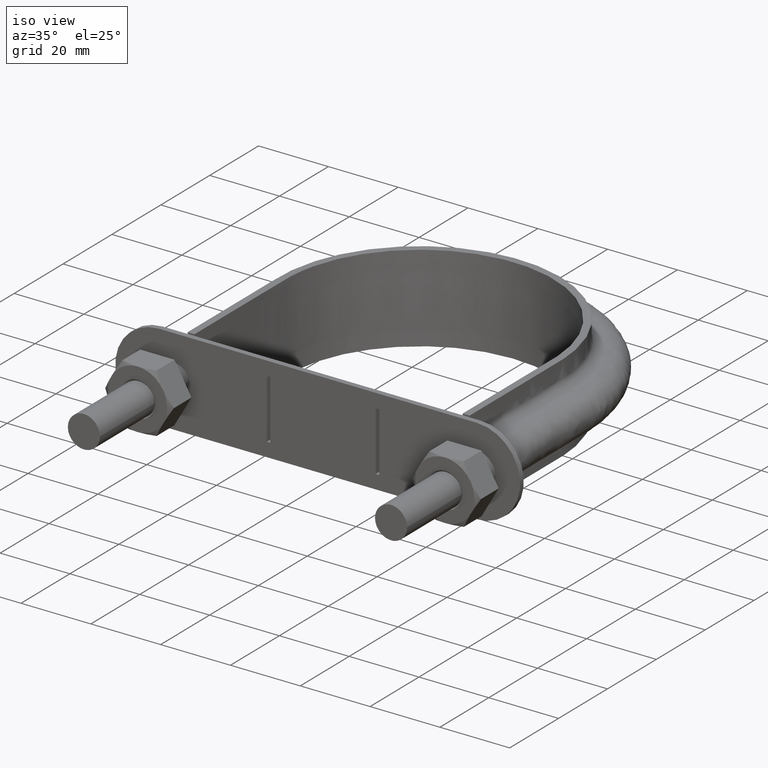
[diagram: clean part render]
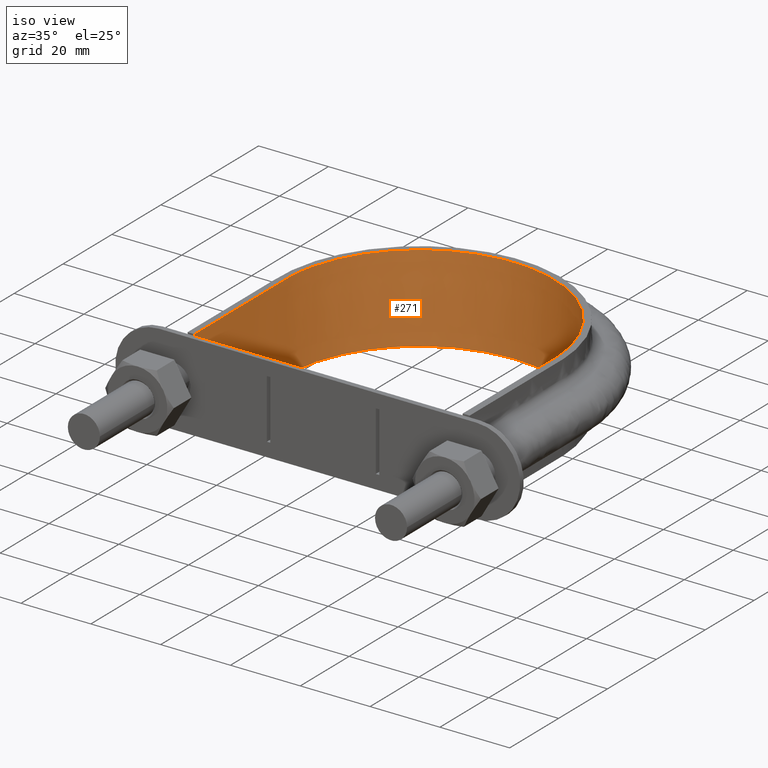
[diagram: same view with one face highlighted and labeled with its STEP entity id]
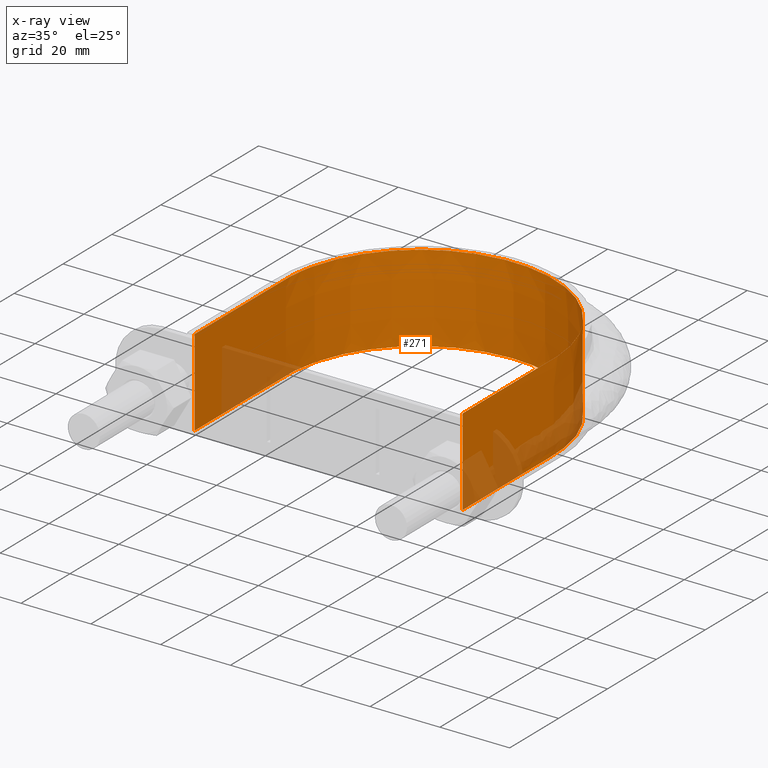
[diagram: x-ray of the same camera — body ghosted, the highlighted face saturated]
A machine part, iso view. The second image highlights one B-rep face of the part: STEP entity #271.
The next image is the same camera in x-ray: the body ghosted, the highlighted face saturated — about 15% of this face is hidden behind the body in this view.
In plain terms, the highlighted face is a SurfaceOfExtrusion surface.
Its self-contained STEP definition (entity closure, byte-faithful):
#271 = ADVANCED_FACE( '', ( #389 ), #390, .T. );
#389 = FACE_OUTER_BOUND( '', #1168, .T. );
#390 = SURFACE_OF_LINEAR_EXTRUSION( '', #1169, #1170 );
#1168 = EDGE_LOOP( '', ( #1737, #1738, #1739, #1740 ) );
#1169 = B_SPLINE_CURVE_WITH_KNOTS( '', 3, ( #1741, #1742, #1743, #1744, #1745, #1746, #1747, #1748, #1749, #1750, #1751, #1752, #1753, #1754, #1755, #1756, #1757 ), .UNSPECIFIED., .F., .F., ( 4, 3, 1, 1, 1, 1, 1, 1, 1, 3, 4 ), ( -7.93017456359102, -7.00000000000000, -6.50000000000000, -6.00000000000000, -5.00000000000000, -4.00000000000000, -3.00000000000000, -2.00000000000000, -1.50000000000000, -1.00000000000000, -0.0698254364089773 ), .UNSPECIFIED. );
#1170 = VECTOR( '', #1758, 1000.00000000000 );
#1737 = ORIENTED_EDGE( '', *, *, #2517, .T. );
#1738 = ORIENTED_EDGE( '', *, *, #2530, .T. );
#1739 = ORIENTED_EDGE( '', *, *, #2525, .F. );
#1740 = ORIENTED_EDGE( '', *, *, #2522, .T. );
#1741 = CARTESIAN_POINT( '', ( 38.4000000000000, 37.3000000000000, 12.5000100000909 ) );
#1742 = CARTESIAN_POINT( '', ( 38.4000000000000, 49.7333333333333, 12.5000100000909 ) );
#1743 = CARTESIAN_POINT( '', ( 38.4000000000000, 62.1666666666667, 12.5000100000909 ) );
#1744 = CARTESIAN_POINT( '', ( 38.4000000000000, 74.6000000000000, 12.5000100000909 ) );
#1745 = CARTESIAN_POINT( '', ( 38.4000000000000, 77.9378960382428, 12.5000100000909 ) );
#1746 = CARTESIAN_POINT( '', ( 37.5004323173849, 84.6534987012364, 12.5000100000909 ) );
#1747 = CARTESIAN_POINT( '', ( 32.3590360537293, 97.1468427507952, 12.5000100000909 ) );
#1748 = CARTESIAN_POINT( '', ( 20.0971465093487, 109.410921736661, 12.5000100000909 ) );
#1749 = CARTESIAN_POINT( '', ( 2.79356000082899E-014, 114.794539131670, 12.5000100000909 ) );
#1750 = CARTESIAN_POINT( '', ( -20.0971465093486, 109.410921736661, 12.5000100000909 ) );
#1751 = CARTESIAN_POINT( '', ( -32.3590360537293, 97.1468427507952, 12.5000100000909 ) );
#1752 = CARTESIAN_POINT( '', ( -37.5004323173848, 84.6534987012364, 12.5000100000909 ) );
#1753 = CARTESIAN_POINT( '', ( -38.4000000000000, 77.9378960382428, 12.5000100000909 ) );
#1754 = CARTESIAN_POINT( '', ( -38.4000000000000, 74.6000000000000, 12.5000100000909 ) );
#1755 = CARTESIAN_POINT( '', ( -38.4000000000000, 62.1666666666667, 12.5000100000909 ) );
#1756 = CARTESIAN_POINT( '', ( -38.4000000000000, 49.7333333333333, 12.5000100000909 ) );
#1757 = CARTESIAN_POINT( '', ( -38.4000000000000, 37.3000000000000, 12.5000100000909 ) );
#1758 = DIRECTION( '', ( 0.000000000000000, 0.000000000000000, -1.00000000000000 ) );
#2517 = EDGE_CURVE( '', #2751, #2752, #2753, .T. );
#2522 = EDGE_CURVE( '', #2761, #2751, #2762, .T. );
#2525 = EDGE_CURVE( '', #2761, #2766, #2767, .T. );
#2530 = EDGE_CURVE( '', #2752, #2766, #2774, .F. );
#2751 = VERTEX_POINT( '', #3139 );
#2752 = VERTEX_POINT( '', #3140 );
#2753 = LINE( '', #3141, #3142 );
#2761 = VERTEX_POINT( '', #3191 );
#2762 = B_SPLINE_CURVE_WITH_KNOTS( '', 3, ( #3192, #3193, #3194, #3195, #3196, #3197, #3198, #3199, #3200, #3201, #3202, #3203, #3204, #3205, #3206, #3207, #3208, #3209, #3210, #3211, #3212, #3213, #3214, #3215, #3216, #3217, #3218, #3219, #3220, #3221, #3222, #3223, #3224, #3225, #3226, #3227, #3228, #3229, #3230, #3231, #3232, #3233, #3234, #3235, #3236, #3237, #3238, #3239, #3240, #3241, #3242, #3243, #3244, #3245, #3246, #3247, #3248, #3249, #3250, #3251, #3252, #3253, #3254, #3255, #3256, #3257, #3258, #3259, #3260, #3261, #3262, #3263, #3264, #3265, #3266, #3267, #3268, #3269, #3270, #3271, #3272, #3273, #3274, #3275, #3276, #3277 ), .UNSPECIFIED., .F., .F., ( 4, 1, 2, 2, 2, 2, 2, 2, 2, 2, 2, 2, 2, 2, 2, 2, 2, 2, 2, 2, 2, 2, 2, 2, 2, 2, 2, 2, 2, 2, 2, 2, 2, 2, 2, 2, 2, 2, 2, 2, 2, 2, 1, 4 ), ( 0.000000000000000, 0.0243379018108098, 0.0365068527162147, 0.0380279715793904, 0.0395490904425660, 0.0425913281689173, 0.0456335658952686, 0.0486758036216198, 0.0547602790743224, 0.0578025168006737, 0.0593236356638494, 0.0608447545270250, 0.0669292299797277, 0.0699714677060791, 0.0714925865692548, 0.0730137054324304, 0.0790981808851331, 0.0851826563378357, 0.0867037752010114, 0.0882248940641870, 0.0912671317905383, 0.0973516072432409, 0.0988727261064166, 0.100393844969592, 0.103436082695944, 0.109520558148646, 0.112562795874997, 0.115605033601349, 0.121689509054051, 0.123210627917227, 0.124731746780403, 0.127773984506754, 0.133858459959457, 0.136900697685808, 0.139942935412159, 0.146027410864862, 0.149069648591213, 0.150590767454389, 0.152111886317564, 0.155154124043915, 0.156675242907091, 0.158196361770267, 0.170365312675672, 0.194703214486481 ), .UNSPECIFIED. );
#2766 = VERTEX_POINT( '', #3298 );
#2767 = LINE( '', #3299, #3300 );
#2774 = B_SPLINE_CURVE_WITH_KNOTS( '', 3, ( #3363, #3364, #3365, #3366, #3367, #3368, #3369, #3370, #3371, #3372, #3373, #3374, #3375, #3376, #3377, #3378, #3379 ), .UNSPECIFIED., .F., .F., ( 4, 3, 1, 1, 1, 1, 1, 1, 1, 3, 4 ), ( -7.93017456359102, -7.00000000000000, -6.50000000000000, -6.00000000000000, -5.00000000000000, -4.00000000000000, -3.00000000000000, -2.00000000000000, -1.50000000000000, -1.00000000000000, -0.0698254364089773 ), .UNSPECIFIED. );
#3139 = CARTESIAN_POINT( '', ( -38.4000000000000, 37.3000000000000, 12.5000000000000 ) );
#3140 = CARTESIAN_POINT( '', ( -38.4000000000000, 37.3000000000000, -12.5000000000000 ) );
#3141 = CARTESIAN_POINT( '', ( -38.4000000000000, 37.3000000000000, 12.5000100000909 ) );
#3142 = VECTOR( '', #4012, 1000.00000000000 );
#3191 = CARTESIAN_POINT( '', ( 38.4000000000000, 37.3000000000000, 12.5000000000000 ) );
#3192 = CARTESIAN_POINT( '', ( 38.4000000000000, 37.3000000000000, 12.5000000000000 ) );
#3193 = CARTESIAN_POINT( '', ( 38.4000000000000, 45.4126339369367, 12.5000000000000 ) );
#3194 = CARTESIAN_POINT( '', ( 38.4000000000000, 57.5815848423418, 12.5000000000000 ) );
#3195 = CARTESIAN_POINT( '', ( 38.4000000000000, 69.7505357477468, 12.5000000000000 ) );
#3196 = CARTESIAN_POINT( '', ( 38.4000000000000, 74.3138923372737, 12.5000000000000 ) );
#3197 = CARTESIAN_POINT( '', ( 38.4027743076037, 74.8211194098904, 12.5000000000000 ) );
#3198 = CARTESIAN_POINT( '', ( 38.3830167791574, 75.8338636956792, 12.5000000000000 ) );
#3199 = CARTESIAN_POINT( '', ( 38.3628782069929, 76.3395426144401, 12.5000000000000 ) );
#3200 = CARTESIAN_POINT( '', ( 38.2722040230530, 77.8545348977657, 12.5000000000000 ) );
#3201 = CARTESIAN_POINT( '', ( 38.1714849409613, 78.8618088567026, 12.5000000000000 ) );
#3202 = CARTESIAN_POINT( '', ( 37.8904277266656, 80.8709771566200, 12.5000000000000 ) );
#3203 = CARTESIAN_POINT( '', ( 37.7100929165158, 81.8728717220618, 12.5000000000000 ) );
#3204 = CARTESIAN_POINT( '', ( 37.2682777085645, 83.8711780914732, 12.5000000000000 ) );
#3205 = CARTESIAN_POINT( '', ( 37.0058649207665, 84.8692095980045, 12.5000000000000 ) );
#3206 = CARTESIAN_POINT( '', ( 36.1099085355124, 87.8004283289942, 12.5000000000000 ) );
#3207 = CARTESIAN_POINT( '', ( 35.3652812283339, 89.6892778605103, 12.5000000000000 ) );
#3208 = CARTESIAN_POINT( '', ( 34.0270721353676, 92.4244820465236, 12.5000000000000 ) );
#3209 = CARTESIAN_POINT( '', ( 33.5438803306412, 93.3197635736672, 12.5000000000000 ) );
#3210 = CARTESIAN_POINT( '', ( 32.7614856080269, 94.6371533741601, 12.5000000000000 ) );
#3211 = CARTESIAN_POINT( '', ( 32.4911122498971, 95.0720394393449, 12.5000000000000 ) );
#3212 = CARTESIAN_POINT( '', ( 31.9310694523164, 95.9332591910994, 12.5000000000000 ) );
#3213 = CARTESIAN_POINT( '', ( 31.6416548483075, 96.3590998328813, 12.5000000000000 ) );
#3214 = CARTESIAN_POINT( '', ( 30.1598500561493, 98.4479727097781, 12.5000000000000 ) );
#3215 = CARTESIAN_POINT( '', ( 28.8544690281686, 100.006253780205, 12.5000000000000 ) );
#3216 = CARTESIAN_POINT( '', ( 26.7242269234556, 102.181725572989, 12.5000000000000 ) );
#3217 = CARTESIAN_POINT( '', ( 25.9852601970117, 102.879711605143, 12.5000000000000 ) );
#3218 = CARTESIAN_POINT( '', ( 24.8327554866621, 103.885251295441, 12.5000000000000 ) );
#3219 = CARTESIAN_POINT( '', ( 24.4412331318476, 104.213513644747, 12.5000000000000 ) );
#3220 = CARTESIAN_POINT( '', ( 23.6432116170530, 104.855950622700, 12.5000000000000 ) );
#3221 = CARTESIAN_POINT( '', ( 23.2357844532913, 105.170799679600, 12.5000000000000 ) );
#3222 = CARTESIAN_POINT( '', ( 21.1728995967700, 106.699717522121, 12.5000000000000 ) );
#3223 = CARTESIAN_POINT( '', ( 19.4461214786923, 107.775116348712, 12.5000000000000 ) );
#3224 = CARTESIAN_POINT( '', ( 15.8424012951627, 109.635807157407, 12.5000000000000 ) );
#3225 = CARTESIAN_POINT( '', ( 13.9663663217124, 110.422851581443, 12.5000000000000 ) );
#3226 = CARTESIAN_POINT( '', ( 11.5271708169512, 111.224762065559, 12.5000000000000 ) );
#3227 = CARTESIAN_POINT( '', ( 11.0351210878858, 111.375746188077, 12.5000000000000 ) );
#3228 = CARTESIAN_POINT( '', ( 10.0502423640907, 111.656786422983, 12.5000000000000 ) );
#3229 = CARTESIAN_POINT( '', ( 9.55637016529625, 111.787194835959, 12.5000000000000 ) );
#3230 = CARTESIAN_POINT( '', ( 8.07051418322863, 112.148502213832, 12.5000000000000 ) );
#3231 = CARTESIAN_POINT( '', ( 7.07429985999578, 112.349545743025, 12.5000000000000 ) );
#3232 = CARTESIAN_POINT( '', ( 4.06886690428282, 112.834187354575, 12.5000000000000 ) );
#3233 = CARTESIAN_POINT( '', ( 2.04300780873477, 113.000351662540, 12.5000000000000 ) );
#3234 = CARTESIAN_POINT( '', ( -0.518810472446216, 112.999911391897, 12.5000000000000 ) );
#3235 = CARTESIAN_POINT( '', ( -1.03384934041133, 112.989267949139, 12.5000000000000 ) );
#3236 = CARTESIAN_POINT( '', ( -2.05999227101034, 112.947123645522, 12.5000000000000 ) );
#3237 = CARTESIAN_POINT( '', ( -2.57100025916374, 112.915690794062, 12.5000000000000 ) );
#3238 = CARTESIAN_POINT( '', ( -4.09798525337127, 112.791070625937, 12.5000000000000 ) );
#3239 = CARTESIAN_POINT( '', ( -5.10793619044573, 112.667626472700, 12.5000000000000 ) );
#3240 = CARTESIAN_POINT( '', ( -8.11438462156143, 112.179780837089, 12.5000000000000 ) );
#3241 = CARTESIAN_POINT( '', ( -10.0876738344830, 111.698850790019, 12.5000000000000 ) );
#3242 = CARTESIAN_POINT( '', ( -13.0003199951631, 110.740024822744, 12.5000000000000 ) );
#3243 = CARTESIAN_POINT( '', ( -13.9672170977488, 110.378727202231, 12.5000000000000 ) );
#3244 = CARTESIAN_POINT( '', ( -15.8546719802246, 109.585984907772, 12.5000000000000 ) );
#3245 = CARTESIAN_POINT( '', ( -16.7774313079128, 109.154197465975, 12.5000000000000 ) );
#3246 = CARTESIAN_POINT( '', ( -19.4833402127083, 107.753490344414, 12.5000000000000 ) );
#3247 = CARTESIAN_POINT( '', ( -21.2036319794211, 106.678400373100, 12.5000000000000 ) );
#3248 = CARTESIAN_POINT( '', ( -23.2504143165323, 105.159581599005, 12.5000000000000 ) );
#3249 = CARTESIAN_POINT( '', ( -23.6545765017690, 104.847044416500, 12.5000000000000 ) );
#3250 = CARTESIAN_POINT( '', ( -24.4524162332019, 104.204260920726, 12.5000000000000 ) );
#3251 = CARTESIAN_POINT( '', ( -24.8469576925090, 103.873240647292, 12.5000000000000 ) );
#3252 = CARTESIAN_POINT( '', ( -26.0068899055369, 102.860053871450, 12.5000000000000 ) );
#3253 = CARTESIAN_POINT( '', ( -26.7486892538446, 102.158088969384, 12.5000000000000 ) );
#3254 = CARTESIAN_POINT( '', ( -28.8823748109423, 99.9749913172513, 12.5000000000000 ) );
#3255 = CARTESIAN_POINT( '', ( -30.1833131714202, 98.4172992895716, 12.5000000000000 ) );
#3256 = CARTESIAN_POINT( '', ( -31.9490860628641, 95.9244952680189, 12.5000000000000 ) );
#3257 = CARTESIAN_POINT( '', ( -32.5065492449490, 95.0673574400839, 12.5000000000000 ) );
#3258 = CARTESIAN_POINT( '', ( -33.5561706257857, 93.2981084952210, 12.5000000000000 ) );
#3259 = CARTESIAN_POINT( '', ( -34.0419906193420, 92.3961278792795, 12.5000000000000 ) );
#3260 = CARTESIAN_POINT( '', ( -35.3824842141314, 89.6497254279650, 12.5000000000000 ) );
#3261 = CARTESIAN_POINT( '', ( -36.1236281599901, 87.7611046726046, 12.5000000000000 ) );
#3262 = CARTESIAN_POINT( '', ( -37.0127103209050, 84.8439686210022, 12.5000000000000 ) );
#3263 = CARTESIAN_POINT( '', ( -37.2717329928220, 83.8574678769682, 12.5000000000000 ) );
#3264 = CARTESIAN_POINT( '', ( -37.6030425852181, 82.3560732451664, 12.5000000000000 ) );
#3265 = CARTESIAN_POINT( '', ( -37.7041051856697, 81.8508772890735, 12.5000000000000 ) );
#3266 = CARTESIAN_POINT( '', ( -37.8853786337736, 80.8410267292643, 12.5000000000000 ) );
#3267 = CARTESIAN_POINT( '', ( -37.9657364586178, 80.3359356167602, 12.5000000000000 ) );
#3268 = CARTESIAN_POINT( '', ( -38.1763323138402, 78.8201705745683, 12.5000000000000 ) );
#3269 = CARTESIAN_POINT( '', ( -38.2761686057871, 77.8090061644105, 12.5000000000000 ) );
#3270 = CARTESIAN_POINT( '', ( -38.3651025185759, 76.2912783131886, 12.5000000000000 ) );
#3271 = CARTESIAN_POINT( '', ( -38.3845912942189, 75.7852051818457, 12.5000000000000 ) );
#3272 = CARTESIAN_POINT( '', ( -38.4030301939459, 74.7727275628628, 12.5000000000000 ) );
#3273 = CARTESIAN_POINT( '', ( -38.4000000000000, 74.2662911261512, 12.5000000000000 ) );
#3274 = CARTESIAN_POINT( '', ( -38.4000000000000, 69.7088031790915, 12.5000000000000 ) );
#3275 = CARTESIAN_POINT( '', ( -38.4000000000000, 57.5555019869322, 12.5000000000000 ) );
#3276 = CARTESIAN_POINT( '', ( -38.4000000000000, 45.4022007947729, 12.5000000000000 ) );
#3277 = CARTESIAN_POINT( '', ( -38.4000000000000, 37.3000000000000, 12.5000000000000 ) );
#3298 = CARTESIAN_POINT( '', ( 38.4000000000000, 37.3000000000000, -12.5000000000000 ) );
#3299 = CARTESIAN_POINT( '', ( 38.4000000000000, 37.3000000000000, 12.5000100000909 ) );
#3300 = VECTOR( '', #4016, 1000.00000000000 );
#3363 = CARTESIAN_POINT( '', ( 38.4000000000000, 37.3000000000000, -12.5000000000000 ) );
#3364 = CARTESIAN_POINT( '', ( 38.4000000000000, 49.7333333333333, -12.5000000000000 ) );
#3365 = CARTESIAN_POINT( '', ( 38.4000000000000, 62.1666666666667, -12.5000000000000 ) );
#3366 = CARTESIAN_POINT( '', ( 38.4000000000000, 74.6000000000000, -12.5000000000000 ) );
#3367 = CARTESIAN_POINT( '', ( 38.4000000000000, 77.9378960382428, -12.5000000000000 ) );
#3368 = CARTESIAN_POINT( '', ( 37.5004323173849, 84.6534987012364, -12.5000000000000 ) );
#3369 = CARTESIAN_POINT( '', ( 32.3590360537293, 97.1468427507952, -12.5000000000000 ) );
#3370 = CARTESIAN_POINT( '', ( 20.0971465093487, 109.410921736661, -12.5000000000000 ) );
#3371 = CARTESIAN_POINT( '', ( 2.79356000082899E-014, 114.794539131670, -12.5000000000000 ) );
#3372 = CARTESIAN_POINT( '', ( -20.0971465093486, 109.410921736661, -12.5000000000000 ) );
#3373 = CARTESIAN_POINT( '', ( -32.3590360537293, 97.1468427507952, -12.5000000000000 ) );
#3374 = CARTESIAN_POINT( '', ( -37.5004323173848, 84.6534987012364, -12.5000000000000 ) );
#3375 = CARTESIAN_POINT( '', ( -38.4000000000000, 77.9378960382428, -12.5000000000000 ) );
#3376 = CARTESIAN_POINT( '', ( -38.4000000000000, 74.6000000000000, -12.5000000000000 ) );
#3377 = CARTESIAN_POINT( '', ( -38.4000000000000, 62.1666666666667, -12.5000000000000 ) );
#3378 = CARTESIAN_POINT( '', ( -38.4000000000000, 49.7333333333333, -12.5000000000000 ) );
#3379 = CARTESIAN_POINT( '', ( -38.4000000000000, 37.3000000000000, -12.5000000000000 ) );
#4012 = DIRECTION( '', ( 0.000000000000000, 0.000000000000000, -1.00000000000000 ) );
#4016 = DIRECTION( '', ( 0.000000000000000, 0.000000000000000, -1.00000000000000 ) );